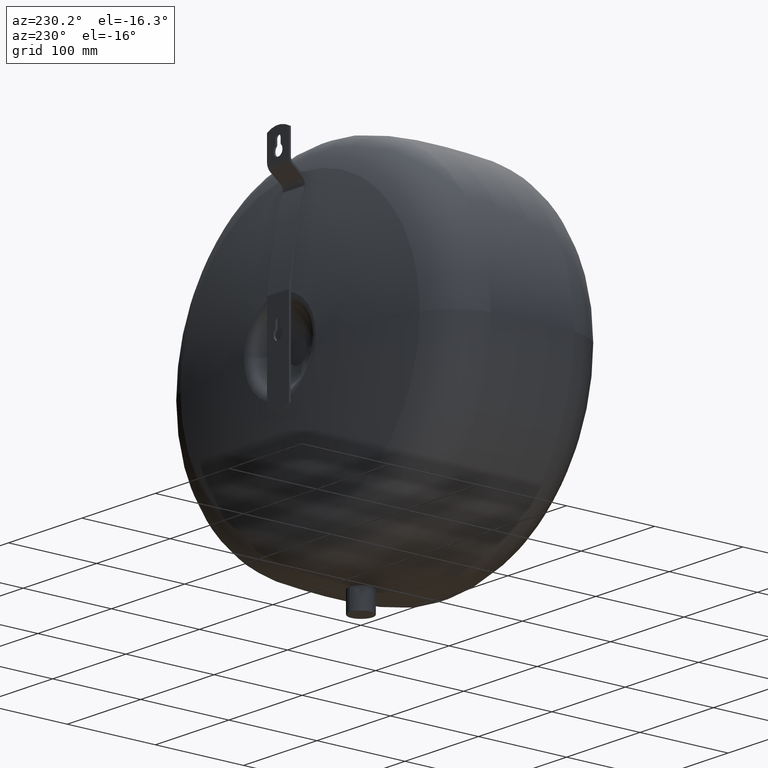
[diagram: clean part render]
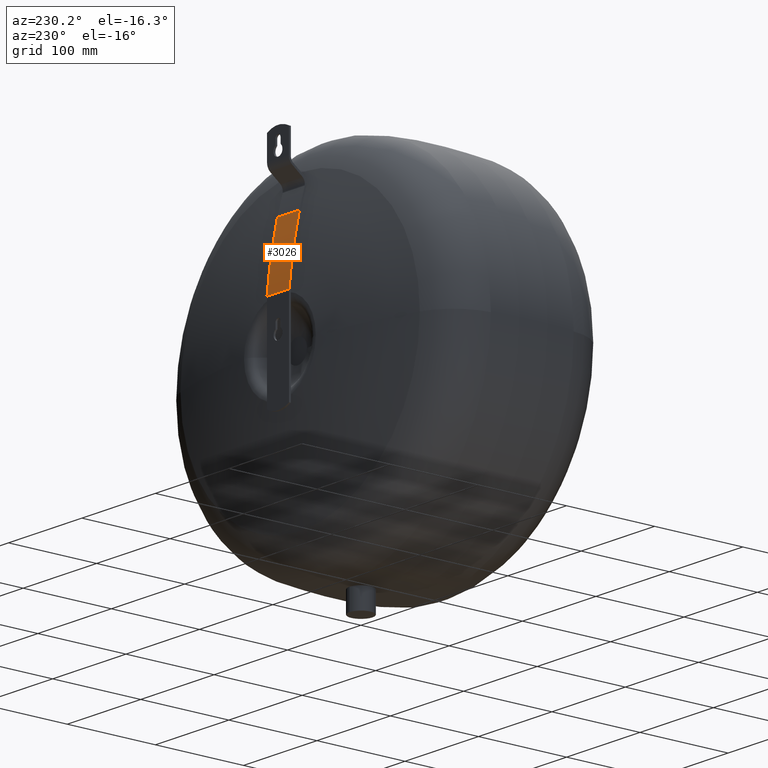
[diagram: same view with one face highlighted and labeled with its STEP entity id]
A machine part, auxiliary view. The second image highlights one B-rep face of the part: STEP entity #3026.
In plain terms, the highlighted cylindrical surface (partial cylindrical patch) has radius 545 mm, axis along (-1, 0, 0).
Its self-contained STEP definition (entity closure, byte-faithful):
#2397=CARTESIAN_POINT('',(15.000000000000012,94.099999999993898,275.06084847495163));
#2398=VERTEX_POINT('',#2397);
#2405=CARTESIAN_POINT('',(15.000000000000014,82.256107831896941,348.99952200036785));
#2406=VERTEX_POINT('',#2405);
#2407=CARTESIAN_POINT('',(14.999999999999909,-448.69015185168155,226.03176473034989));
#2408=DIRECTION('',(-1.0,1.877986E-016,4.349437E-017));
#2409=DIRECTION('',(1.927695E-016,0.974213320520327,0.225628912422051));
#2410=AXIS2_PLACEMENT_3D('',#2407,#2408,#2409);
#2411=CIRCLE('',#2410,544.99999999999989);
#2412=EDGE_CURVE('',#2406,#2398,#2411,.T.);
#2532=CARTESIAN_POINT('',(-14.999999999999988,94.099999999993898,275.06084847495163));
#2533=VERTEX_POINT('',#2532);
#2540=CARTESIAN_POINT('',(15.000000000000012,94.099999999993898,275.06084847495163));
#2541=DIRECTION('',(-1.0,0.0,0.0));
#2542=VECTOR('',#2541,30.0);
#2543=LINE('',#2540,#2542);
#2544=EDGE_CURVE('',#2398,#2533,#2543,.T.);
#2694=CARTESIAN_POINT('',(-14.999999999999988,82.256107831896941,348.99952200036785));
#2695=VERTEX_POINT('',#2694);
#2703=CARTESIAN_POINT('',(-15.000000000000091,-448.69015185168155,226.03176473034989));
#2704=DIRECTION('',(1.0,-1.877986E-016,-4.349437E-017));
#2705=DIRECTION('',(1.927695E-016,0.974213320520327,0.225628912422051));
#2706=AXIS2_PLACEMENT_3D('',#2703,#2704,#2705);
#2707=CIRCLE('',#2706,544.99999999999989);
#2708=EDGE_CURVE('',#2533,#2695,#2707,.T.);
#3010=CARTESIAN_POINT('',(14.999999999999909,-448.69015185168155,226.03176473034989));
#3011=DIRECTION('',(-1.0,1.836910E-016,6.123032E-017));
#3012=DIRECTION('',(1.927695E-016,0.974213320520327,0.225628912422051));
#3013=AXIS2_PLACEMENT_3D('',#3010,#3011,#3012);
#3014=CYLINDRICAL_SURFACE('',#3013,545.0);
#3015=ORIENTED_EDGE('',*,*,#2708,.T.);
#3016=CARTESIAN_POINT('',(15.000000000000014,82.256107831896941,348.99952200036785));
#3017=DIRECTION('',(-1.0,0.0,0.0));
#3018=VECTOR('',#3017,30.0);
#3019=LINE('',#3016,#3018);
#3020=EDGE_CURVE('',#2406,#2695,#3019,.T.);
#3021=ORIENTED_EDGE('',*,*,#3020,.F.);
#3022=ORIENTED_EDGE('',*,*,#2412,.T.);
#3023=ORIENTED_EDGE('',*,*,#2544,.T.);
#3024=EDGE_LOOP('',(#3015,#3021,#3022,#3023));
#3025=FACE_OUTER_BOUND('',#3024,.T.);
#3026=ADVANCED_FACE('',(#3025),#3014,.T.);